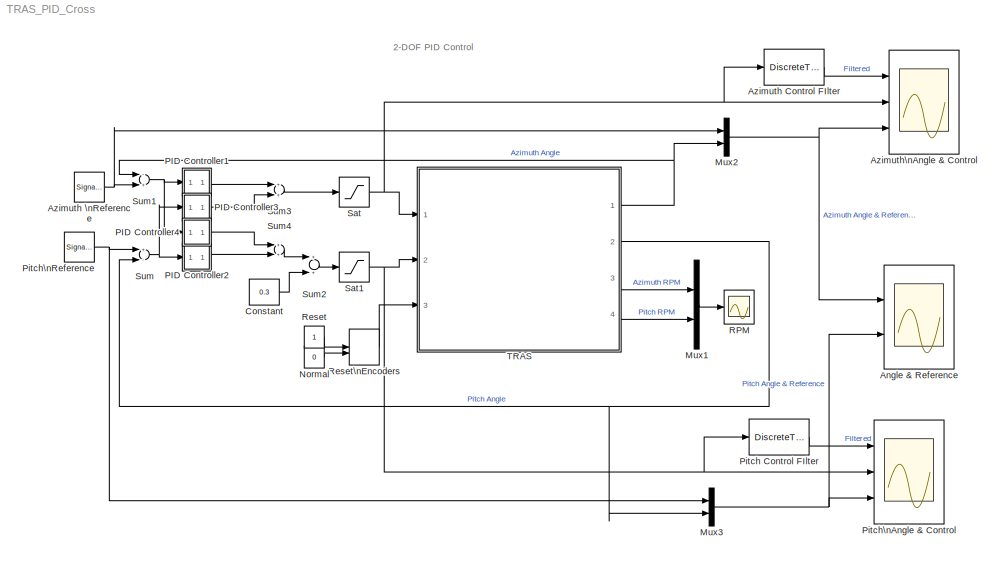
MODEL TRAS_PID_Cross
KIND model
BLOCK [Scope] Angle & Reference
  DataFormat = StructureWithTime
  ExtModeLoggingTrig = on
  ExtModeUploadOption = log
  Floating = off
  MaxDataPoints = 12000
  NumInputPorts = 2
  Ports = [2]
  SID = 1
  SampleTime = 0
  SaveName = AngleReference_
  SaveToWorkspace = on
  ShowLegends = off
  TimeRange = 90
  YMax = 1~0.4
  YMin = -1~-0.5
  ZoomMode = xonly
BLOCK [DiscreteTransferFcn] Azimuth Control FIlter
  Denominator = [1.0000   -3.9845    6.4349   -5.2536    2.1651   -0.3599]
  InputPortMap = u0
  Numerator = [0.0598    0.2990    0.5980    0.5980    0.2990    0.0598] * 1e-3
  Ports = [1, 1]
  SID = 4
  SampleTime = 0.01
BLOCK [SignalGenerator] Azimuth \nReference
  Amplitude = .8
  Frequency = .025
  Ports = [0, 1]
  SID = 3
  WaveForm = square
BLOCK [Scope] Azimuth\nAngle & Control
  DataFormat = StructureWithTime
  ExtModeLoggingTrig = on
  ExtModeUploadOption = log
  Floating = off
  MaxDataPoints = 12000
  NumInputPorts = 3
  Ports = [3]
  SID = 2
  SampleTime = 0
  SaveName = AngleCtrl_
  SaveToWorkspace = on
  ShowLegends = off
  TimeRange = 90
  YMax = -0.225~0.5~1
  YMin = -0.4~-0.5~-1
  ZoomMode = xonly
BLOCK [Constant] Constant
  SID = 5
  Value = 0.3
BLOCK [Mux] Mux1
  DisplayOption = bar
  Inputs = 2
  Ports = [2, 1]
  SID = 6
BLOCK [Mux] Mux2
  DisplayOption = bar
  Inputs = 2
  Ports = [2, 1]
  SID = 7
BLOCK [Mux] Mux3
  DisplayOption = bar
  Inputs = 2
  Ports = [2, 1]
  SID = 8
BLOCK [Constant] Normal
  SID = 9
  Value = 0
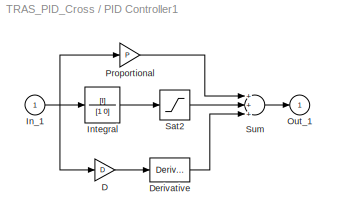
BLOCK [SubSystem] PID Controller1
  FunctionWithSeparateData = off
  MaskHideContents = off
  MinAlgLoopOccurrences = off
  Opaque = off
  Ports = [1, 1]
  PropExecContextOutsideSubsystem = off
  RTWSystemCode = Auto
  RequestExecContextInheritance = off
  SID = 10
BLOCK [Gain] PID Controller1/D
  Gain = D
  SID = 12
BLOCK [Derivative] PID Controller1/Derivative
  SID = 13
BLOCK [Inport] PID Controller1/In_1
  IconDisplay = Port number
  SID = 11
BLOCK [TransferFcn] PID Controller1/Integral
  Denominator = [1 0]
  Numerator = [I]
  SID = 14
BLOCK [Outport] PID Controller1/Out_1
  IconDisplay = Port number
  InitialOutput = 0
  SID = 18
BLOCK [Gain] PID Controller1/Proportional
  Gain = P
  SID = 15
BLOCK [Saturate] PID Controller1/Sat2
  InputPortMap = u0
  LowerLimit = -S
  Ports = [1, 1]
  SID = 16
  UpperLimit = S
BLOCK [Sum] PID Controller1/Sum
  Inputs = +++
  Ports = [3, 1]
  SID = 17
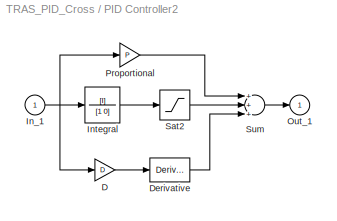
BLOCK [SubSystem] PID Controller2
  FunctionWithSeparateData = off
  MaskHideContents = off
  MinAlgLoopOccurrences = off
  Opaque = off
  Ports = [1, 1]
  PropExecContextOutsideSubsystem = off
  RTWSystemCode = Auto
  RequestExecContextInheritance = off
  SID = 19
BLOCK [Gain] PID Controller2/D
  Gain = D
  SID = 21
BLOCK [Derivative] PID Controller2/Derivative
  SID = 22
BLOCK [Inport] PID Controller2/In_1
  IconDisplay = Port number
  SID = 20
BLOCK [TransferFcn] PID Controller2/Integral
  Denominator = [1 0]
  Numerator = [I]
  SID = 23
BLOCK [Outport] PID Controller2/Out_1
  IconDisplay = Port number
  InitialOutput = 0
  SID = 27
BLOCK [Gain] PID Controller2/Proportional
  Gain = P
  SID = 24
BLOCK [Saturate] PID Controller2/Sat2
  InputPortMap = u0
  LowerLimit = -S
  Ports = [1, 1]
  SID = 25
  UpperLimit = S
BLOCK [Sum] PID Controller2/Sum
  Inputs = +++
  Ports = [3, 1]
  SID = 26
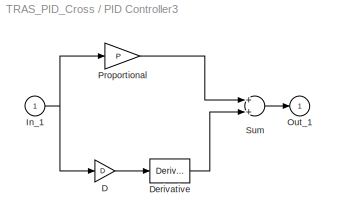
BLOCK [SubSystem] PID Controller3
  FunctionWithSeparateData = off
  MaskHideContents = off
  MinAlgLoopOccurrences = off
  Opaque = off
  Ports = [1, 1]
  PropExecContextOutsideSubsystem = off
  RTWSystemCode = Auto
  RequestExecContextInheritance = off
  SID = 28
BLOCK [Gain] PID Controller3/D
  Gain = D
  SID = 30
BLOCK [Derivative] PID Controller3/Derivative
  SID = 31
BLOCK [Inport] PID Controller3/In_1
  IconDisplay = Port number
  SID = 29
BLOCK [Outport] PID Controller3/Out_1
  IconDisplay = Port number
  InitialOutput = 0
  SID = 34
BLOCK [Gain] PID Controller3/Proportional
  Gain = P
  SID = 32
BLOCK [Sum] PID Controller3/Sum
  Ports = [2, 1]
  SID = 33
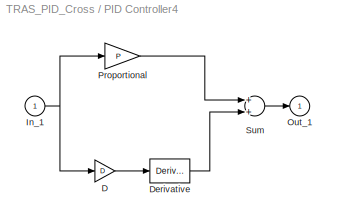
BLOCK [SubSystem] PID Controller4
  FunctionWithSeparateData = off
  MaskHideContents = off
  MinAlgLoopOccurrences = off
  Opaque = off
  Ports = [1, 1]
  PropExecContextOutsideSubsystem = off
  RTWSystemCode = Auto
  RequestExecContextInheritance = off
  SID = 35
BLOCK [Gain] PID Controller4/D
  Gain = D
  SID = 37
BLOCK [Derivative] PID Controller4/Derivative
  SID = 38
BLOCK [Inport] PID Controller4/In_1
  IconDisplay = Port number
  SID = 36
BLOCK [Outport] PID Controller4/Out_1
  IconDisplay = Port number
  InitialOutput = 0
  SID = 41
BLOCK [Gain] PID Controller4/Proportional
  Gain = P
  SID = 39
BLOCK [Sum] PID Controller4/Sum
  Ports = [2, 1]
  SID = 40
BLOCK [DiscreteTransferFcn] Pitch Control FIlter
  Denominator = [1.0000   -3.9845    6.4349   -5.2536    2.1651   -0.3599]
  InputPortMap = u0
  Numerator = [0.0598    0.2990    0.5980    0.5980    0.2990    0.0598] * 1e-3
  Ports = [1, 1]
  SID = 44
  SampleTime = 0.01
BLOCK [Scope] Pitch\nAngle & Control
  DataFormat = StructureWithTime
  ExtModeLoggingTrig = on
  ExtModeUploadOption = log
  Floating = off
  MaxDataPoints = 12000
  NumInputPorts = 3
  Ports = [3]
  SID = 42
  SampleTime = 0
  SaveName = AngleCtrl1_
  SaveToWorkspace = on
  ShowLegends = off
  TimeRange = 90
  YMax = 0.75~0.9~0.35
  YMin = 2.77556e-17~-0.1~-0.5
  ZoomMode = xonly
BLOCK [SignalGenerator] Pitch\nReference
  Amplitude = .3
  Frequency = 1/30
  Ports = [0, 1]
  SID = 43
BLOCK [Scope] RPM
  DataFormat = StructureWithTime
  ExtModeLoggingTrig = on
  ExtModeUploadOption = log
  Floating = off
  MaxDataPoints = 12000
  NumInputPorts = 1
  Ports = [1]
  SID = 45
  SampleTime = 0
  SaveName = RPM_
  SaveToWorkspace = on
  ShowLegends = off
  TimeRange = 90
  YMax = 7000
  YMin = -6000
BLOCK [Constant] Reset
  SID = 46
BLOCK [ManualSwitch] Reset\nEncoders
  CurrentSetting = 0
  SID = 47
BLOCK [Saturate] Sat
  InputPortMap = u0
  Ports = [1, 1]
  SID = 48
BLOCK [Saturate] Sat1
  InputPortMap = u0
  LowerLimit = -.2
  Ports = [1, 1]
  SID = 49
  UpperLimit = 1
BLOCK [Sum] Sum
  InputSameDT = off
  Inputs = +-
  OutDataTypeStr = Inherit: Inherit via internal rule
  Ports = [2, 1]
  SID = 50
BLOCK [Sum] Sum1
  InputSameDT = off
  Inputs = -+
  OutDataTypeStr = Inherit: Inherit via internal rule
  Ports = [2, 1]
  SID = 51
BLOCK [Sum] Sum2
  InputSameDT = off
  OutDataTypeStr = Inherit: Inherit via internal rule
  Ports = [2, 1]
  SID = 52
BLOCK [Sum] Sum3
  InputSameDT = off
  OutDataTypeStr = Inherit: Inherit via internal rule
  Ports = [2, 1]
  SID = 53
BLOCK [Sum] Sum4
  InputSameDT = off
  OutDataTypeStr = Inherit: Inherit via internal rule
  Ports = [2, 1]
  SID = 54
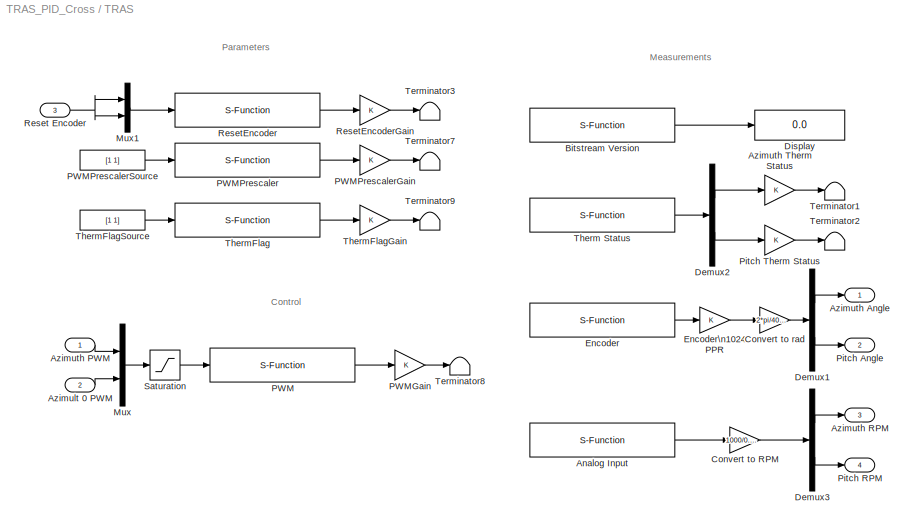
BLOCK [SubSystem] TRAS
  FunctionWithSeparateData = off
  MaskHideContents = off
  MinAlgLoopOccurrences = off
  Opaque = off
  Ports = [3, 4]
  PropExecContextOutsideSubsystem = off
  RTWSystemCode = Auto
  RequestExecContextInheritance = off
  SID = 55
BLOCK [S-Function] TRAS/Analog Input
  EnableBusSupport = off
  FunctionName = TRAS_AnalogInput
  Parameters = BaseAddress, [1 0], [1 1], T0
  Ports = [0, 1]
  SID = 59
BLOCK [Inport] TRAS/Azimult 0 PWM
  IconDisplay = Port number
  Port = 2
  SID = 57
BLOCK [Outport] TRAS/Azimuth Angle
  IconDisplay = Port number
  InitialOutput = 0
  SID = 91
BLOCK [Inport] TRAS/Azimuth PWM
  IconDisplay = Port number
  SID = 56
BLOCK [Outport] TRAS/Azimuth RPM
  IconDisplay = Port number
  InitialOutput = 0
  Port = 3
  SID = 93
BLOCK [Gain] TRAS/Azimuth Therm Status
  SID = 60
BLOCK [S-Function] TRAS/Bitstream Version
  EnableBusSupport = off
  FunctionName = TRAS_BitstreamVersion
  Parameters = BaseAddress, T0
  Ports = [0, 1]
  SID = 61
BLOCK [Gain] TRAS/Convert to RPM
  Gain = 1000/0.52/2
  SID = 62
BLOCK [Gain] TRAS/Convert to rad
  Gain = 2*pi/4096
  SID = 63
BLOCK [Demux] TRAS/Demux1
  Outputs = 2
  Ports = [1, 2]
  SID = 64
BLOCK [Demux] TRAS/Demux2
  Outputs = 2
  Ports = [1, 2]
  SID = 65
BLOCK [Demux] TRAS/Demux3
  Outputs = 2
  Ports = [1, 2]
  SID = 66
BLOCK [Display] TRAS/Display
  Decimation = 1
  Lockdown = off
  Ports = [1]
  SID = 67
BLOCK [S-Function] TRAS/Encoder
  EnableBusSupport = off
  FunctionName = TRAS_Encoder
  Parameters = BaseAddress, T0
  Ports = [0, 1]
  SID = 68
BLOCK [Gain] TRAS/Encoder\n1024 PPR
  SID = 69
BLOCK [Mux] TRAS/Mux
  Inputs = 2
  Ports = [2, 1]
  SID = 70
BLOCK [Mux] TRAS/Mux1
  Inputs = 2
  Ports = [2, 1]
  SID = 71
BLOCK [S-Function] TRAS/PWM
  EnableBusSupport = off
  FunctionName = TRAS_PWM
  Parameters = BaseAddress, T0
  Ports = [1, 1]
  SID = 72
BLOCK [Gain] TRAS/PWMGain
  SID = 73
BLOCK [S-Function] TRAS/PWMPrescaler
  EnableBusSupport = off
  FunctionName = TRAS_PWMPrescaler
  Parameters = BaseAddress, T0
  Ports = [1, 1]
  SID = 74
BLOCK [Gain] TRAS/PWMPrescalerGain
  SID = 75
BLOCK [Constant] TRAS/PWMPrescalerSource
  SID = 76
  Value = [1 1]
BLOCK [Outport] TRAS/Pitch Angle
  IconDisplay = Port number
  InitialOutput = 0
  Port = 2
  SID = 92
BLOCK [Outport] TRAS/Pitch RPM
  IconDisplay = Port number
  InitialOutput = 0
  Port = 4
  SID = 94
BLOCK [Gain] TRAS/Pitch Therm Status
  SID = 77
BLOCK [Inport] TRAS/Reset Encoder
  IconDisplay = Port number
  Port = 3
  SID = 58
BLOCK [S-Function] TRAS/ResetEncoder
  EnableBusSupport = off
  FunctionName = TRAS_ResetEncoder
  Parameters = BaseAddress, T0
  Ports = [1, 1]
  SID = 78
BLOCK [Gain] TRAS/ResetEncoderGain
  SID = 79
BLOCK [Saturate] TRAS/Saturation
  InputPortMap = u0
  LowerLimit = -1
  Ports = [1, 1]
  SID = 80
  UpperLimit = 1
BLOCK [Terminator] TRAS/Terminator1
  SID = 81
BLOCK [Terminator] TRAS/Terminator2
  SID = 82
BLOCK [Terminator] TRAS/Terminator3
  SID = 83
BLOCK [Terminator] TRAS/Terminator7
  SID = 84
BLOCK [Terminator] TRAS/Terminator8
  SID = 85
BLOCK [Terminator] TRAS/Terminator9
  SID = 86
BLOCK [S-Function] TRAS/Therm Status
  EnableBusSupport = off
  FunctionName = TRAS_PWMTherm
  Parameters = BaseAddress, T0
  Ports = [0, 1]
  SID = 87
BLOCK [S-Function] TRAS/ThermFlag 
  EnableBusSupport = off
  FunctionName = TRAS_ThermFlag
  Parameters = BaseAddress, T0
  Ports = [1, 1]
  SID = 88
BLOCK [Gain] TRAS/ThermFlagGain
  SID = 89
BLOCK [Constant] TRAS/ThermFlagSource
  SID = 90
  Value = [1 1]
ANNOTATION (root): 2-DOF PID Control
ANNOTATION TRAS: Control
ANNOTATION TRAS: Measurements
ANNOTATION TRAS: Parameters
LINE Azimuth Control FIlter:1 -> Azimuth\nAngle & Control:1
NET Azimuth \nReference:1 -> Mux2:1, Sum1:2
LINE Constant:1 -> Sum2:2
LINE Mux1:1 -> RPM:1
NET Mux2:1 -> Angle & Reference:1, Azimuth\nAngle & Control:3
NET Mux3:1 -> Angle & Reference:2, Pitch\nAngle & Control:3
LINE Normal:1 -> Reset\nEncoders:2
LINE PID Controller1/D:1 -> PID Controller1/Derivative:1
LINE PID Controller1/Derivative:1 -> PID Controller1/Sum:3
NET PID Controller1/In_1:1 -> PID Controller1/D:1, PID Controller1/Integral:1, PID Controller1/Proportional:1
LINE PID Controller1/Integral:1 -> PID Controller1/Sat2:1
LINE PID Controller1/Proportional:1 -> PID Controller1/Sum:1
LINE PID Controller1/Sat2:1 -> PID Controller1/Sum:2
LINE PID Controller1/Sum:1 -> PID Controller1/Out_1:1
LINE PID Controller1:1 -> Sum3:1
LINE PID Controller2/D:1 -> PID Controller2/Derivative:1
LINE PID Controller2/Derivative:1 -> PID Controller2/Sum:3
NET PID Controller2/In_1:1 -> PID Controller2/D:1, PID Controller2/Integral:1, PID Controller2/Proportional:1
LINE PID Controller2/Integral:1 -> PID Controller2/Sat2:1
LINE PID Controller2/Proportional:1 -> PID Controller2/Sum:1
LINE PID Controller2/Sat2:1 -> PID Controller2/Sum:2
LINE PID Controller2/Sum:1 -> PID Controller2/Out_1:1
LINE PID Controller2:1 -> Sum4:2
LINE PID Controller3/D:1 -> PID Controller3/Derivative:1
LINE PID Controller3/Derivative:1 -> PID Controller3/Sum:2
NET PID Controller3/In_1:1 -> PID Controller3/D:1, PID Controller3/Proportional:1
LINE PID Controller3/Proportional:1 -> PID Controller3/Sum:1
LINE PID Controller3/Sum:1 -> PID Controller3/Out_1:1
LINE PID Controller3:1 -> Sum3:2
LINE PID Controller4/D:1 -> PID Controller4/Derivative:1
LINE PID Controller4/Derivative:1 -> PID Controller4/Sum:2
NET PID Controller4/In_1:1 -> PID Controller4/D:1, PID Controller4/Proportional:1
LINE PID Controller4/Proportional:1 -> PID Controller4/Sum:1
LINE PID Controller4/Sum:1 -> PID Controller4/Out_1:1
LINE PID Controller4:1 -> Sum4:1
LINE Pitch Control FIlter:1 -> Pitch\nAngle & Control:1
NET Pitch\nReference:1 -> Mux3:1, Sum:1
LINE Reset:1 -> Reset\nEncoders:1
LINE Reset\nEncoders:1 -> TRAS:3
NET Sat1:1 -> Pitch Control FIlter:1, Pitch\nAngle & Control:2, TRAS:2
NET Sat:1 -> Azimuth Control FIlter:1, Azimuth\nAngle & Control:2, TRAS:1
NET Sum1:1 -> PID Controller1:1, PID Controller4:1
LINE Sum2:1 -> Sat1:1
LINE Sum3:1 -> Sat:1
LINE Sum4:1 -> Sum2:1
NET Sum:1 -> PID Controller2:1, PID Controller3:1
LINE TRAS/Analog Input:1 -> TRAS/Convert to RPM:1
LINE TRAS/Azimult 0 PWM:1 -> TRAS/Mux:2
LINE TRAS/Azimuth PWM:1 -> TRAS/Mux:1
LINE TRAS/Azimuth Therm Status:1 -> TRAS/Terminator1:1
LINE TRAS/Bitstream Version:1 -> TRAS/Display:1
LINE TRAS/Convert to RPM:1 -> TRAS/Demux3:1
LINE TRAS/Convert to rad:1 -> TRAS/Demux1:1
LINE TRAS/Demux1:1 -> TRAS/Azimuth Angle:1
LINE TRAS/Demux1:2 -> TRAS/Pitch Angle:1
LINE TRAS/Demux2:1 -> TRAS/Azimuth Therm Status:1
LINE TRAS/Demux2:2 -> TRAS/Pitch Therm Status:1
LINE TRAS/Demux3:1 -> TRAS/Azimuth RPM:1
LINE TRAS/Demux3:2 -> TRAS/Pitch RPM:1
LINE TRAS/Encoder:1 -> TRAS/Encoder\n1024 PPR:1
LINE TRAS/Encoder\n1024 PPR:1 -> TRAS/Convert to rad:1
LINE TRAS/Mux1:1 -> TRAS/ResetEncoder:1
LINE TRAS/Mux:1 -> TRAS/Saturation:1
LINE TRAS/PWM:1 -> TRAS/PWMGain:1
LINE TRAS/PWMGain:1 -> TRAS/Terminator8:1
LINE TRAS/PWMPrescaler:1 -> TRAS/PWMPrescalerGain:1
LINE TRAS/PWMPrescalerGain:1 -> TRAS/Terminator7:1
LINE TRAS/PWMPrescalerSource:1 -> TRAS/PWMPrescaler:1
LINE TRAS/Pitch Therm Status:1 -> TRAS/Terminator2:1
NET TRAS/Reset Encoder:1 -> TRAS/Mux1:1, TRAS/Mux1:2
LINE TRAS/ResetEncoder:1 -> TRAS/ResetEncoderGain:1
LINE TRAS/ResetEncoderGain:1 -> TRAS/Terminator3:1
LINE TRAS/Saturation:1 -> TRAS/PWM:1
LINE TRAS/Therm Status:1 -> TRAS/Demux2:1
LINE TRAS/ThermFlag :1 -> TRAS/ThermFlagGain:1
LINE TRAS/ThermFlagGain:1 -> TRAS/Terminator9:1
LINE TRAS/ThermFlagSource:1 -> TRAS/ThermFlag :1
NET TRAS:1 -> Mux2:2, Sum1:1
NET TRAS:2 -> Mux3:2, Sum:2
LINE TRAS:3 -> Mux1:1
LINE TRAS:4 -> Mux1:2
note: NET lines group one-source signal fan-out (src -> all destinations, sorted); 1:1 wires keep LINE
